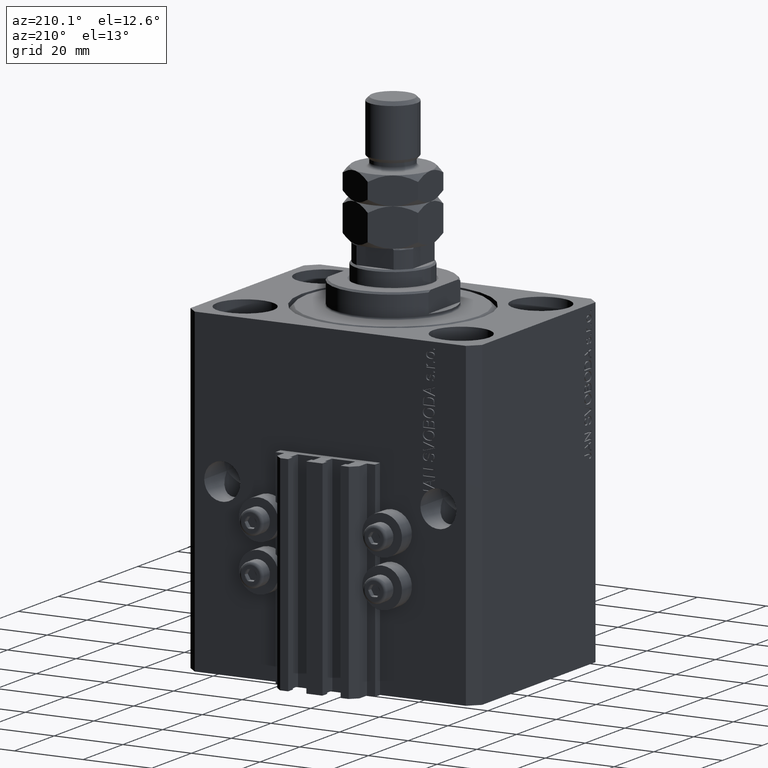
[diagram: clean part render]
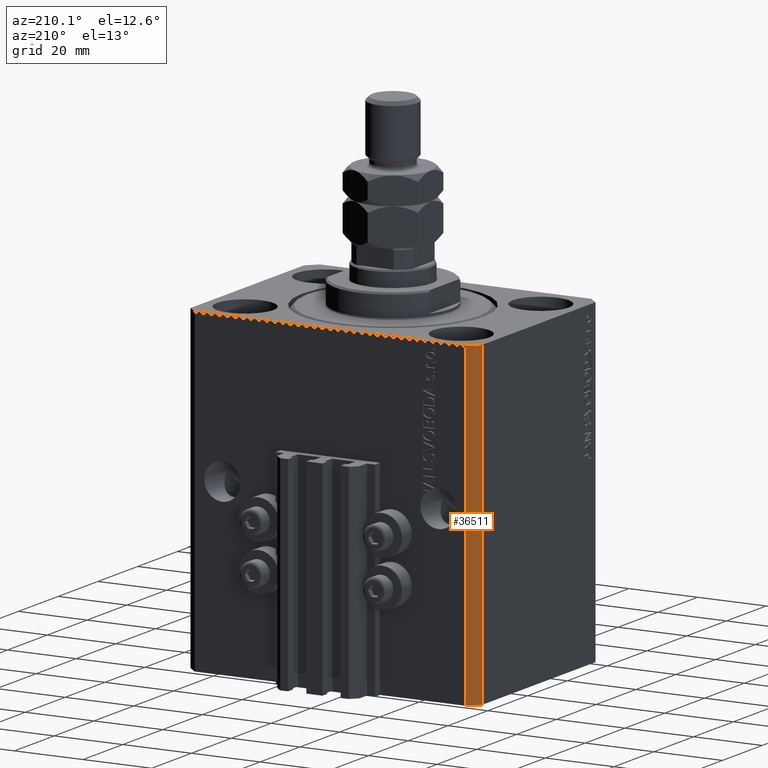
[diagram: same view with one face highlighted and labeled with its STEP entity id]
A machine part, auxiliary view. The second image highlights one B-rep face of the part: STEP entity #36511.
In plain terms, the highlighted planar face has unit normal (-0.7071, 0.7071, 0).
Its self-contained STEP definition (entity closure, byte-faithful):
#1151 = CARTESIAN_POINT ( 'NONE',  ( -39.50000000000000711, 31.50000000000000000, -93.00000000000000000 ) ) ;
#2808 = DIRECTION ( 'NONE',  ( -0.7071067811865479058, 0.7071067811865471286, 0.000000000000000000 ) ) ;
#3320 = EDGE_CURVE ( 'NONE', #29863, #10883, #23957, .T. ) ;
#4004 = CARTESIAN_POINT ( 'NONE',  ( -42.50000000000000000, 28.50000000000000000, -93.00000000000000000 ) ) ;
#4735 = EDGE_CURVE ( 'NONE', #18681, #29863, #31627, .T. ) ;
#5323 = DIRECTION ( 'NONE',  ( -0.7071067811865471286, -0.7071067811865479058, 0.000000000000000000 ) ) ;
#10097 = LINE ( 'NONE', #25265, #32986 ) ;
#10183 = EDGE_CURVE ( 'NONE', #18681, #14613, #12083, .T. ) ;
#10354 = EDGE_LOOP ( 'NONE', ( #21338, #26402, #26065, #21913 ) ) ;
#10883 = VERTEX_POINT ( 'NONE', #43316 ) ;
#12083 = LINE ( 'NONE', #1151, #26744 ) ;
#14613 = VERTEX_POINT ( 'NONE', #4004 ) ;
#17966 = DIRECTION ( 'NONE',  ( -0.7071067811865471286, -0.7071067811865479058, 0.000000000000000000 ) ) ;
#18681 = VERTEX_POINT ( 'NONE', #44251 ) ;
#18958 = AXIS2_PLACEMENT_3D ( 'NONE', #30385, #2808, #17966 ) ;
#20009 = DIRECTION ( 'NONE',  ( -0.7071067811865471286, -0.7071067811865479058, 0.000000000000000000 ) ) ;
#21338 = ORIENTED_EDGE ( 'NONE', *, *, #3320, .F. ) ;
#21913 = ORIENTED_EDGE ( 'NONE', *, *, #24539, .T. ) ;
#21936 = PLANE ( 'NONE',  #18958 ) ;
#23957 = LINE ( 'NONE', #38904, #46505 ) ;
#24539 = EDGE_CURVE ( 'NONE', #14613, #10883, #10097, .T. ) ;
#25265 = CARTESIAN_POINT ( 'NONE',  ( -42.50000000000000000, 28.50000000000000000, -93.00000000000000000 ) ) ;
#26065 = ORIENTED_EDGE ( 'NONE', *, *, #10183, .T. ) ;
#26402 = ORIENTED_EDGE ( 'NONE', *, *, #4735, .F. ) ;
#26744 = VECTOR ( 'NONE', #20009, 1000.000000000000000 ) ;
#28397 = CARTESIAN_POINT ( 'NONE',  ( -39.50000000000000711, 31.50000000000000000, -93.00000000000000000 ) ) ;
#29863 = VERTEX_POINT ( 'NONE', #36003 ) ;
#30385 = CARTESIAN_POINT ( 'NONE',  ( -39.50000000000000711, 31.50000000000000000, -93.00000000000000000 ) ) ;
#31627 = LINE ( 'NONE', #28397, #32196 ) ;
#32196 = VECTOR ( 'NONE', #39844, 1000.000000000000000 ) ;
#32986 = VECTOR ( 'NONE', #40458, 1000.000000000000000 ) ;
#33389 = FACE_OUTER_BOUND ( 'NONE', #10354, .T. ) ;
#36003 = CARTESIAN_POINT ( 'NONE',  ( -39.50000000000000711, 31.50000000000000000, 0.000000000000000000 ) ) ;
#36511 = ADVANCED_FACE ( 'NONE', ( #33389 ), #21936, .T. ) ;
#38904 = CARTESIAN_POINT ( 'NONE',  ( -39.50000000000000711, 31.50000000000000000, 0.000000000000000000 ) ) ;
#39844 = DIRECTION ( 'NONE',  ( 0.000000000000000000, 0.000000000000000000, 1.000000000000000000 ) ) ;
#40458 = DIRECTION ( 'NONE',  ( 0.000000000000000000, 0.000000000000000000, 1.000000000000000000 ) ) ;
#43316 = CARTESIAN_POINT ( 'NONE',  ( -42.50000000000000000, 28.50000000000000000, 0.000000000000000000 ) ) ;
#44251 = CARTESIAN_POINT ( 'NONE',  ( -39.50000000000000711, 31.50000000000000000, -93.00000000000000000 ) ) ;
#46505 = VECTOR ( 'NONE', #5323, 1000.000000000000000 ) ;